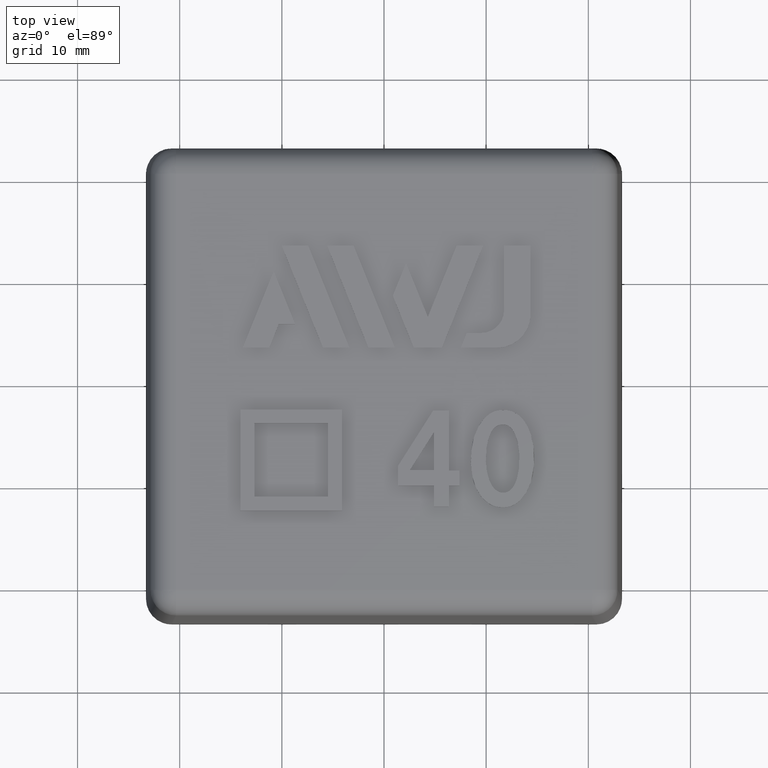
[diagram: clean part render]
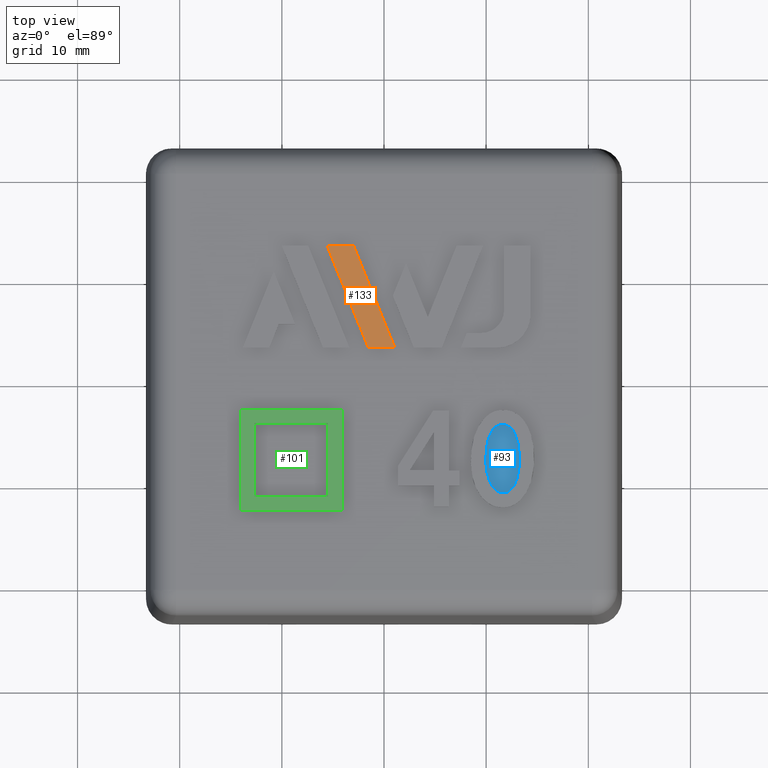
[diagram: same view with three faces highlighted in distinct colors, each labeled with its STEP entity id]
A machine part, top view with three faces highlighted in distinct colors.
Their STEP definitions:

[orange] entity #133 — the highlighted planar face has unit normal (0, 0, 1).
#133 = ADVANCED_FACE( '', ( #292 ), #293, .T. );
#292 = FACE_OUTER_BOUND( '', #480, .T. );
#293 = PLANE( '', #481 );
#480 = EDGE_LOOP( '', ( #1027, #1028, #1029, #1030 ) );
#481 = AXIS2_PLACEMENT_3D( '', #1031, #1032, #1033 );
#1027 = ORIENTED_EDGE( '', *, *, #1387, .T. );
#1028 = ORIENTED_EDGE( '', *, *, #1388, .T. );
#1029 = ORIENTED_EDGE( '', *, *, #1389, .T. );
#1030 = ORIENTED_EDGE( '', *, *, #1390, .T. );
#1031 = CARTESIAN_POINT( '', ( 353.391284081979, 134.816099886284, 27.8335000000000 ) );
#1032 = DIRECTION( '', ( 0.000000000000000, 6.12303176911189E-017, 1.00000000000000 ) );
#1033 = DIRECTION( '', ( -1.00000000000000, 0.000000000000000, 0.000000000000000 ) );
#1387 = EDGE_CURVE( '', #1702, #1703, #1704, .T. );
#1388 = EDGE_CURVE( '', #1703, #1705, #1706, .T. );
#1389 = EDGE_CURVE( '', #1705, #1707, #1708, .T. );
#1390 = EDGE_CURVE( '', #1707, #1702, #1709, .T. );
#1702 = VERTEX_POINT( '', #2286 );
#1703 = VERTEX_POINT( '', #2287 );
#1704 = LINE( '', #2288, #2289 );
#1705 = VERTEX_POINT( '', #2290 );
#1706 = LINE( '', #2291, #2292 );
#1707 = VERTEX_POINT( '', #2293 );
#1708 = LINE( '', #2294, #2295 );
#1709 = LINE( '', #2296, #2297 );
#2286 = CARTESIAN_POINT( '', ( -1.52549380194753, 3.29689874999999, 27.8335000000000 ) );
#2287 = CARTESIAN_POINT( '', ( 1.05926679915247, 3.29689874999999, 27.8335000000000 ) );
#2288 = CARTESIAN_POINT( '', ( -1.52549380194753, 3.29689874999999, 27.8335000000000 ) );
#2289 = VECTOR( '', #2521, 1000.00000000000 );
#2290 = CARTESIAN_POINT( '', ( -2.98251083806003, 13.2995783770600, 27.8335000000000 ) );
#2291 = CARTESIAN_POINT( '', ( 1.05926679915247, 3.29689874999999, 27.8335000000000 ) );
#2292 = VECTOR( '', #2522, 1000.00000000000 );
#2293 = CARTESIAN_POINT( '', ( -5.56727032693752, 13.2995783770600, 27.8335000000000 ) );
#2294 = CARTESIAN_POINT( '', ( -2.98251083806003, 13.2995783770600, 27.8335000000000 ) );
#2295 = VECTOR( '', #2523, 1000.00000000000 );
#2296 = CARTESIAN_POINT( '', ( -5.56727032693752, 13.2995783770600, 27.8335000000000 ) );
#2297 = VECTOR( '', #2524, 1000.00000000000 );
#2521 = DIRECTION( '', ( 1.00000000000000, 0.000000000000000, 0.000000000000000 ) );
#2522 = DIRECTION( '', ( -0.374641075834904, 0.927169922019295, -5.67709088788913E-017 ) );
#2523 = DIRECTION( '', ( -1.00000000000000, 0.000000000000000, 0.000000000000000 ) );
#2524 = DIRECTION( '', ( 0.374640987210496, -0.927169957829709, 5.67709110715744E-017 ) );

[blue] entity #93 — the highlighted planar face has unit normal (0, 0, 1).
#93 = ADVANCED_FACE( '', ( #207 ), #208, .T. );
#207 = FACE_OUTER_BOUND( '', #393, .T. );
#208 = PLANE( '', #394 );
#393 = EDGE_LOOP( '', ( #712 ) );
#394 = AXIS2_PLACEMENT_3D( '', #713, #714, #715 );
#712 = ORIENTED_EDGE( '', *, *, #1317, .T. );
#713 = CARTESIAN_POINT( '', ( -23.3000000000000, -23.3000000000000, 27.5000000000000 ) );
#714 = DIRECTION( '', ( 0.000000000000000, 0.000000000000000, 1.00000000000000 ) );
#715 = DIRECTION( '', ( 0.000000000000000, -1.00000000000000, 0.000000000000000 ) );
#1317 = EDGE_CURVE( '', #1592, #1592, #1593, .T. );
#1592 = VERTEX_POINT( '', #2034 );
#1593 = B_SPLINE_CURVE_WITH_KNOTS( '', 2, ( #2035, #2036, #2037, #2038, #2039, #2040, #2041, #2042, #2043, #2044, #2045, #2046, #2047, #2048, #2049, #2050, #2051 ), .UNSPECIFIED., .T., .F., ( 3, 2, 2, 2, 2, 2, 2, 2, 3 ), ( 0.000000000000000, 1.00000000000000, 2.00000000000000, 3.00000000000000, 4.00000000000000, 5.00000000000000, 6.00000000000000, 7.00000000000000, 8.00000000000000 ), .UNSPECIFIED. );
#2034 = CARTESIAN_POINT( '', ( 10.2930221590909, -9.65264545454547, 27.5000000000000 ) );
#2035 = CARTESIAN_POINT( '', ( 10.2930221590909, -9.65264545454547, 27.5000000000000 ) );
#2036 = CARTESIAN_POINT( '', ( 10.7021130681818, -10.7435545454546, 27.5000000000000 ) );
#2037 = CARTESIAN_POINT( '', ( 11.4754891766094, -10.8761333068993, 27.5000000000000 ) );
#2038 = CARTESIAN_POINT( '', ( 12.2930221590909, -11.0162818181818, 27.5000000000000 ) );
#2039 = CARTESIAN_POINT( '', ( 12.7772214239178, -10.0988516321940, 27.5000000000000 ) );
#2040 = CARTESIAN_POINT( '', ( 13.1566585227272, -9.37991818181820, 27.5000000000000 ) );
#2041 = CARTESIAN_POINT( '', ( 13.2401479527513, -8.10670437395093, 27.5000000000000 ) );
#2042 = CARTESIAN_POINT( '', ( 13.3384767045454, -6.60719090909093, 27.5000000000000 ) );
#2043 = CARTESIAN_POINT( '', ( 12.9683212235975, -5.51849831806775, 27.5000000000000 ) );
#2044 = CARTESIAN_POINT( '', ( 12.5657494318181, -4.33446363636365, 27.5000000000000 ) );
#2045 = CARTESIAN_POINT( '', ( 11.8402948863636, -4.23082727272729, 27.5000000000000 ) );
#2046 = CARTESIAN_POINT( '', ( 10.9748403409090, -4.10719090909093, 27.5000000000000 ) );
#2047 = CARTESIAN_POINT( '', ( 10.5300850961538, -4.88551258741261, 27.5000000000000 ) );
#2048 = CARTESIAN_POINT( '', ( 10.0657494318181, -5.69810000000002, 27.5000000000000 ) );
#2049 = CARTESIAN_POINT( '', ( 9.98202637946271, -7.01673807459794, 27.5000000000000 ) );
#2050 = CARTESIAN_POINT( '', ( 9.88393124999996, -8.56173636363638, 27.5000000000000 ) );
#2051 = CARTESIAN_POINT( '', ( 10.2930221590909, -9.65264545454547, 27.5000000000000 ) );

[green] entity #101 — the highlighted planar face has unit normal (0, 0, 1).
#101 = ADVANCED_FACE( '', ( #226, #227 ), #228, .T. );
#226 = FACE_OUTER_BOUND( '', #414, .T. );
#227 = FACE_BOUND( '', #415, .T. );
#228 = PLANE( '', #416 );
#414 = EDGE_LOOP( '', ( #788, #789, #790, #791 ) );
#415 = EDGE_LOOP( '', ( #792, #793, #794, #795 ) );
#416 = AXIS2_PLACEMENT_3D( '', #796, #797, #798 );
#788 = ORIENTED_EDGE( '', *, *, #1333, .F. );
#789 = ORIENTED_EDGE( '', *, *, #1334, .F. );
#790 = ORIENTED_EDGE( '', *, *, #1335, .F. );
#791 = ORIENTED_EDGE( '', *, *, #1336, .F. );
#792 = ORIENTED_EDGE( '', *, *, #1337, .F. );
#793 = ORIENTED_EDGE( '', *, *, #1338, .F. );
#794 = ORIENTED_EDGE( '', *, *, #1339, .F. );
#795 = ORIENTED_EDGE( '', *, *, #1340, .F. );
#796 = CARTESIAN_POINT( '', ( -14.0706142045455, -7.69810000000002, 28.0000000000000 ) );
#797 = DIRECTION( '', ( 0.000000000000000, 0.000000000000000, 1.00000000000000 ) );
#798 = DIRECTION( '', ( 0.000000000000000, -1.00000000000000, 0.000000000000000 ) );
#1333 = EDGE_CURVE( '', #1622, #1623, #1624, .T. );
#1334 = EDGE_CURVE( '', #1625, #1622, #1626, .T. );
#1335 = EDGE_CURVE( '', #1627, #1625, #1628, .T. );
#1336 = EDGE_CURVE( '', #1623, #1627, #1629, .T. );
#1337 = EDGE_CURVE( '', #1630, #1631, #1632, .T. );
#1338 = EDGE_CURVE( '', #1633, #1630, #1634, .T. );
#1339 = EDGE_CURVE( '', #1635, #1633, #1636, .T. );
#1340 = EDGE_CURVE( '', #1631, #1635, #1637, .T. );
#1622 = VERTEX_POINT( '', #2133 );
#1623 = VERTEX_POINT( '', #2134 );
#1624 = B_SPLINE_CURVE_WITH_KNOTS( '', 2, ( #2135, #2136, #2137 ), .UNSPECIFIED., .F., .F., ( 3, 3 ), ( 0.000000000000000, 1.00000000000000 ), .UNSPECIFIED. );
#1625 = VERTEX_POINT( '', #2138 );
#1626 = B_SPLINE_CURVE_WITH_KNOTS( '', 2, ( #2139, #2140, #2141 ), .UNSPECIFIED., .F., .F., ( 3, 3 ), ( 3.00000000000000, 4.00000000000000 ), .UNSPECIFIED. );
#1627 = VERTEX_POINT( '', #2142 );
#1628 = B_SPLINE_CURVE_WITH_KNOTS( '', 2, ( #2143, #2144, #2145 ), .UNSPECIFIED., .F., .F., ( 3, 3 ), ( 2.00000000000000, 3.00000000000000 ), .UNSPECIFIED. );
#1629 = B_SPLINE_CURVE_WITH_KNOTS( '', 2, ( #2146, #2147, #2148 ), .UNSPECIFIED., .F., .F., ( 3, 3 ), ( 1.00000000000000, 2.00000000000000 ), .UNSPECIFIED. );
#1630 = VERTEX_POINT( '', #2149 );
#1631 = VERTEX_POINT( '', #2150 );
#1632 = B_SPLINE_CURVE_WITH_KNOTS( '', 2, ( #2151, #2152, #2153 ), .UNSPECIFIED., .F., .F., ( 3, 3 ), ( 0.000000000000000, 1.00000000000000 ), .UNSPECIFIED. );
#1633 = VERTEX_POINT( '', #2154 );
#1634 = B_SPLINE_CURVE_WITH_KNOTS( '', 2, ( #2155, #2156, #2157 ), .UNSPECIFIED., .F., .F., ( 3, 3 ), ( 3.00000000000000, 4.00000000000000 ), .UNSPECIFIED. );
#1635 = VERTEX_POINT( '', #2158 );
#1636 = B_SPLINE_CURVE_WITH_KNOTS( '', 2, ( #2159, #2160, #2161 ), .UNSPECIFIED., .F., .F., ( 3, 3 ), ( 2.00000000000000, 3.00000000000000 ), .UNSPECIFIED. );
#1637 = B_SPLINE_CURVE_WITH_KNOTS( '', 2, ( #2162, #2163, #2164 ), .UNSPECIFIED., .F., .F., ( 3, 3 ), ( 1.00000000000000, 2.00000000000000 ), .UNSPECIFIED. );
#2133 = CARTESIAN_POINT( '', ( -14.0706142045455, -12.6526454545455, 28.0000000000000 ) );
#2134 = CARTESIAN_POINT( '', ( -14.0706142045455, -2.74355454545456, 28.0000000000000 ) );
#2135 = CARTESIAN_POINT( '', ( -14.0706142045455, -12.6526454545455, 28.0000000000000 ) );
#2136 = CARTESIAN_POINT( '', ( -14.0706142045455, -7.69810000000002, 28.0000000000000 ) );
#2137 = CARTESIAN_POINT( '', ( -14.0706142045455, -2.74355454545456, 28.0000000000000 ) );
#2138 = CARTESIAN_POINT( '', ( -4.11606875000004, -12.6526454545455, 28.0000000000000 ) );
#2139 = CARTESIAN_POINT( '', ( -4.11606875000004, -12.6526454545455, 28.0000000000000 ) );
#2140 = CARTESIAN_POINT( '', ( -9.09334147727277, -12.6526454545455, 28.0000000000000 ) );
#2141 = CARTESIAN_POINT( '', ( -14.0706142045455, -12.6526454545455, 28.0000000000000 ) );
#2142 = CARTESIAN_POINT( '', ( -4.11606875000004, -2.74355454545456, 28.0000000000000 ) );
#2143 = CARTESIAN_POINT( '', ( -4.11606875000004, -2.74355454545456, 28.0000000000000 ) );
#2144 = CARTESIAN_POINT( '', ( -4.11606875000004, -7.69810000000002, 28.0000000000000 ) );
#2145 = CARTESIAN_POINT( '', ( -4.11606875000004, -12.6526454545455, 28.0000000000000 ) );
#2146 = CARTESIAN_POINT( '', ( -14.0706142045455, -2.74355454545456, 28.0000000000000 ) );
#2147 = CARTESIAN_POINT( '', ( -9.09334147727277, -2.74355454545456, 28.0000000000000 ) );
#2148 = CARTESIAN_POINT( '', ( -4.11606875000004, -2.74355454545456, 28.0000000000000 ) );
#2149 = CARTESIAN_POINT( '', ( -12.7069778409091, -11.2890090909091, 28.0000000000000 ) );
#2150 = CARTESIAN_POINT( '', ( -5.47970511363641, -11.2890090909091, 28.0000000000000 ) );
#2151 = CARTESIAN_POINT( '', ( -12.7069778409091, -11.2890090909091, 28.0000000000000 ) );
#2152 = CARTESIAN_POINT( '', ( -9.09334147727277, -11.2890090909091, 28.0000000000000 ) );
#2153 = CARTESIAN_POINT( '', ( -5.47970511363641, -11.2890090909091, 28.0000000000000 ) );
#2154 = CARTESIAN_POINT( '', ( -12.7069778409091, -4.06173636363638, 28.0000000000000 ) );
#2155 = CARTESIAN_POINT( '', ( -12.7069778409091, -4.06173636363638, 28.0000000000000 ) );
#2156 = CARTESIAN_POINT( '', ( -12.7069778409091, -7.67537272727275, 28.0000000000000 ) );
#2157 = CARTESIAN_POINT( '', ( -12.7069778409091, -11.2890090909091, 28.0000000000000 ) );
#2158 = CARTESIAN_POINT( '', ( -5.47970511363641, -4.06173636363638, 28.0000000000000 ) );
#2159 = CARTESIAN_POINT( '', ( -5.47970511363641, -4.06173636363638, 28.0000000000000 ) );
#2160 = CARTESIAN_POINT( '', ( -9.09334147727277, -4.06173636363638, 28.0000000000000 ) );
#2161 = CARTESIAN_POINT( '', ( -12.7069778409091, -4.06173636363638, 28.0000000000000 ) );
#2162 = CARTESIAN_POINT( '', ( -5.47970511363641, -11.2890090909091, 28.0000000000000 ) );
#2163 = CARTESIAN_POINT( '', ( -5.47970511363641, -7.67537272727275, 28.0000000000000 ) );
#2164 = CARTESIAN_POINT( '', ( -5.47970511363641, -4.06173636363638, 28.0000000000000 ) );